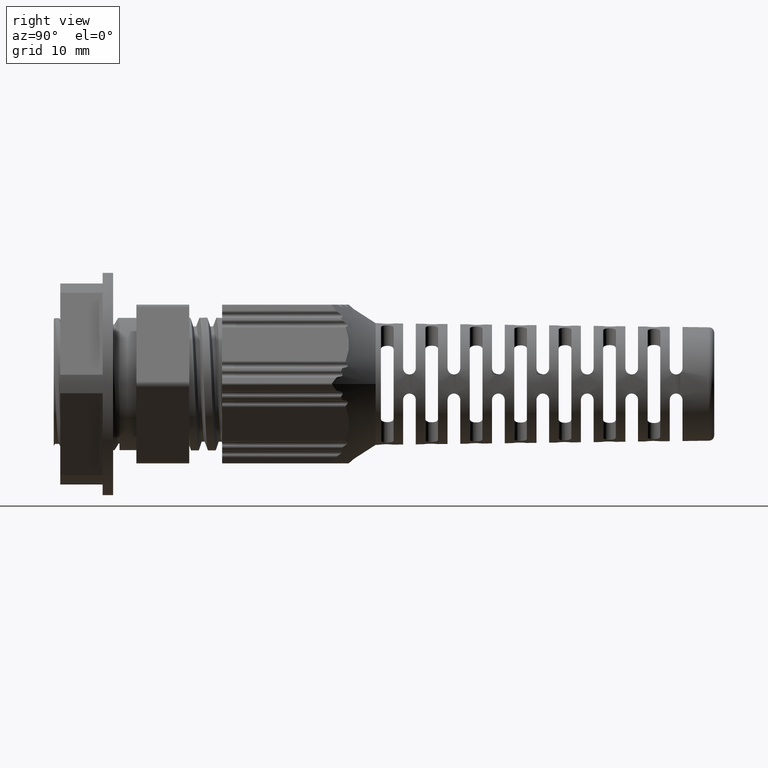
[diagram: clean part render]
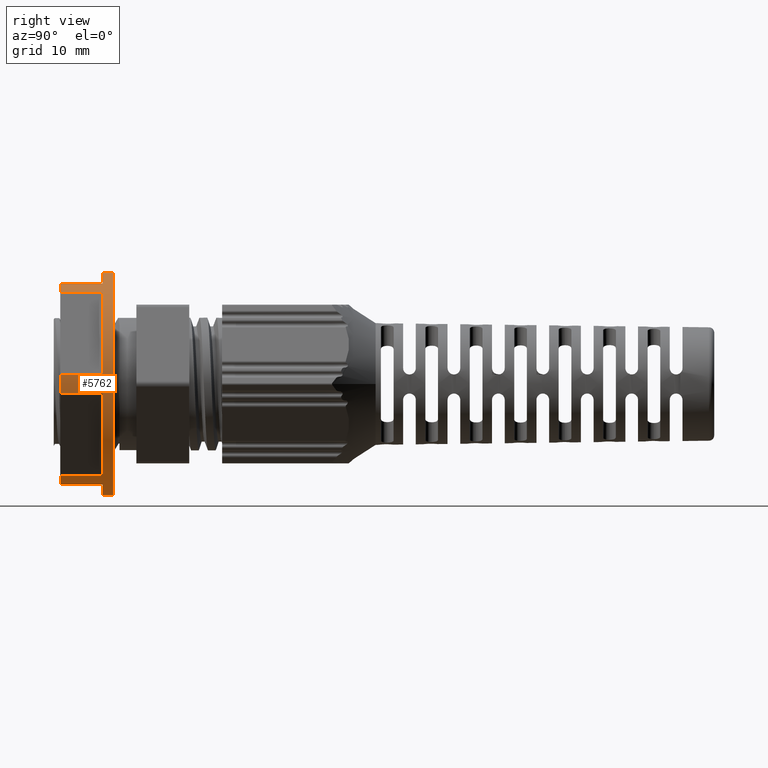
[diagram: same view with one face highlighted and labeled with its STEP entity id]
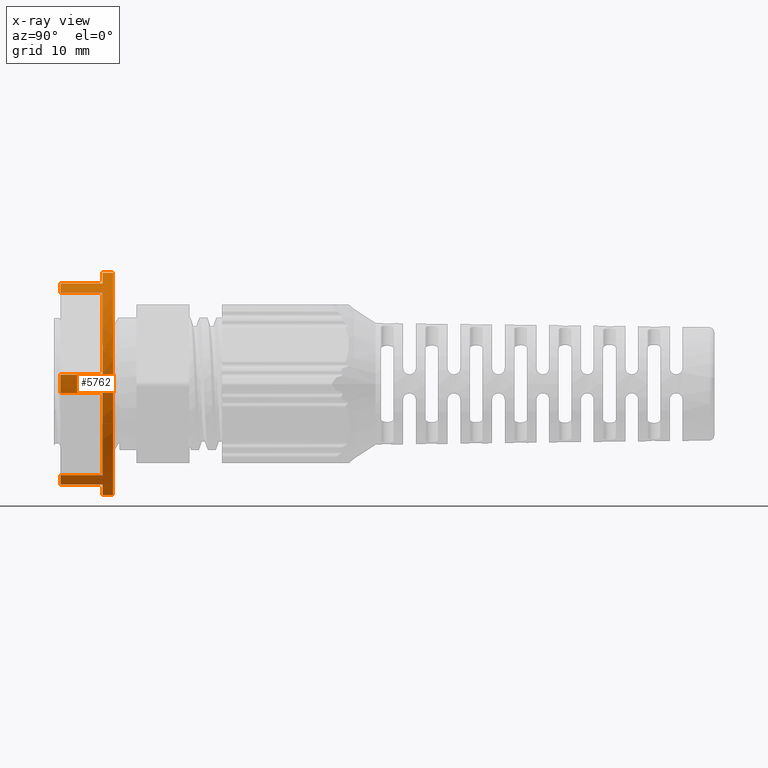
[diagram: x-ray of the same camera — body ghosted, the highlighted face saturated]
A machine part, right view. The second image highlights one B-rep face of the part: STEP entity #5762.
The next image is the same camera in x-ray: the body ghosted, the highlighted face saturated — about 0% of this face is hidden behind the body in this view.
In plain terms, the highlighted cylindrical surface (partial cylindrical patch) has radius 10.5 mm, axis along (0, 1, 0).
Its self-contained STEP definition (entity closure, byte-faithful):
#3405 = CYLINDRICAL_SURFACE ( 'NONE', #20530, 10.50000000000000000 ) ;
#3411 = FACE_OUTER_BOUND ( 'NONE', #20852, .T. ) ;
#3424 = CARTESIAN_POINT ( 'NONE',  ( 3.469446951953614200E-015, -10.06608847983449600, 0.0000000000000000000 ) ) ;
#3425 = DIRECTION ( 'NONE',  ( 0.0000000000000000000, 1.000000000000000000, 0.0000000000000000000 ) ) ;
#3428 = DIRECTION ( 'NONE',  ( 0.0000000000000000000, 0.0000000000000000000, 1.000000000000000000 ) ) ;
#5762 = ADVANCED_FACE ( 'NONE', ( #3411 ), #3405, .T. ) ;
#6902 = EDGE_CURVE ( 'NONE', #18112, #18127, #7647, .T. ) ;
#6903 = EDGE_CURVE ( 'NONE', #18127, #18159, #10527, .T. ) ;
#6904 = EDGE_CURVE ( 'NONE', #18162, #18048, #10534, .T. ) ;
#6905 = EDGE_CURVE ( 'NONE', #18048, #18145, #7638, .T. ) ;
#6907 = EDGE_CURVE ( 'NONE', #18212, #18208, #7644, .T. ) ;
#6916 = EDGE_CURVE ( 'NONE', #18178, #18218, #7659, .T. ) ;
#6917 = EDGE_CURVE ( 'NONE', #18178, #18112, #10606, .T. ) ;
#6920 = EDGE_CURVE ( 'NONE', #18212, #18174, #10629, .T. ) ;
#6925 = EDGE_CURVE ( 'NONE', #18145, #18210, #10631, .T. ) ;
#6939 = EDGE_CURVE ( 'NONE', #18168, #18151, #10742, .T. ) ;
#6941 = EDGE_CURVE ( 'NONE', #18174, #18210, #7307, .T. ) ;
#6943 = EDGE_CURVE ( 'NONE', #18143, #18168, #7316, .T. ) ;
#6947 = EDGE_CURVE ( 'NONE', #18114, #18143, #10783, .T. ) ;
#6948 = EDGE_CURVE ( 'NONE', #18162, #18151, #7329, .T. ) ;
#6950 = EDGE_CURVE ( 'NONE', #18208, #18218, #10803, .T. ) ;
#6951 = EDGE_CURVE ( 'NONE', #18114, #18159, #7323, .T. ) ;
#7290 = VECTOR ( 'NONE', #10647, 1000.000000000000000 ) ;
#7296 = VECTOR ( 'NONE', #10645, 1000.000000000000000 ) ;
#7307 = CIRCLE ( 'NONE', #7317, 10.50000000000000000 ) ;
#7309 = VECTOR ( 'NONE', #10738, 1000.000000000000000 ) ;
#7316 = CIRCLE ( 'NONE', #7320, 10.50000000000000000 ) ;
#7317 = AXIS2_PLACEMENT_3D ( 'NONE', #10744, #10758, #10724 ) ;
#7318 = AXIS2_PLACEMENT_3D ( 'NONE', #10765, #10796, #10800 ) ;
#7319 = VECTOR ( 'NONE', #10809, 1000.000000000000000 ) ;
#7320 = AXIS2_PLACEMENT_3D ( 'NONE', #10717, #10718, #10741 ) ;
#7323 = CIRCLE ( 'NONE', #7325, 10.50000000000000000 ) ;
#7324 = VECTOR ( 'NONE', #10780, 1000.000000000000000 ) ;
#7325 = AXIS2_PLACEMENT_3D ( 'NONE', #10775, #10808, #10788 ) ;
#7329 = CIRCLE ( 'NONE', #7318, 10.50000000000000000 ) ;
#7634 = AXIS2_PLACEMENT_3D ( 'NONE', #10548, #10531, #10525 ) ;
#7636 = VECTOR ( 'NONE', #10533, 1000.000000000000000 ) ;
#7637 = VECTOR ( 'NONE', #10536, 1000.000000000000000 ) ;
#7638 = CIRCLE ( 'NONE', #7642, 10.50000000000000000 ) ;
#7642 = AXIS2_PLACEMENT_3D ( 'NONE', #10569, #10611, #10572 ) ;
#7644 = CIRCLE ( 'NONE', #7651, 10.50000000000000000 ) ;
#7647 = CIRCLE ( 'NONE', #7634, 10.50000000000000000 ) ;
#7651 = AXIS2_PLACEMENT_3D ( 'NONE', #10579, #10584, #10577 ) ;
#7656 = AXIS2_PLACEMENT_3D ( 'NONE', #10617, #10640, #10634 ) ;
#7659 = CIRCLE ( 'NONE', #7656, 10.50000000000000000 ) ;
#7662 = VECTOR ( 'NONE', #10627, 1000.000000000000000 ) ;
#10525 = DIRECTION ( 'NONE',  ( 0.0000000000000000000, 0.0000000000000000000, 1.000000000000000000 ) ) ;
#10527 = LINE ( 'NONE', #10528, #7636 ) ;
#10528 = CARTESIAN_POINT ( 'NONE',  ( 10.46330931345196000, -10.06608847983449600, 0.8770166537925948600 ) ) ;
#10531 = DIRECTION ( 'NONE',  ( 0.0000000000000000000, 1.000000000000000000, 0.0000000000000000000 ) ) ;
#10533 = DIRECTION ( 'NONE',  ( -0.0000000000000000000, -1.000000000000000000, -0.0000000000000000000 ) ) ;
#10534 = LINE ( 'NONE', #10535, #7637 ) ;
#10535 = CARTESIAN_POINT ( 'NONE',  ( 4.472135954999549400, -10.06608847983449600, -9.500000000000016000 ) ) ;
#10536 = DIRECTION ( 'NONE',  ( 0.0000000000000000000, 1.000000000000000000, 0.0000000000000000000 ) ) ;
#10548 = CARTESIAN_POINT ( 'NONE',  ( 3.469446951953614200E-015, -10.06608847983449600, 0.0000000000000000000 ) ) ;
#10569 = CARTESIAN_POINT ( 'NONE',  ( 3.469446951953614200E-015, -10.06608847983449600, 0.0000000000000000000 ) ) ;
#10572 = DIRECTION ( 'NONE',  ( 0.0000000000000000000, 0.0000000000000000000, 1.000000000000000000 ) ) ;
#10577 = DIRECTION ( 'NONE',  ( 0.0000000000000000000, 0.0000000000000000000, 1.000000000000000000 ) ) ;
#10579 = CARTESIAN_POINT ( 'NONE',  ( 3.469446951953614200E-015, -10.06608847983449600, 0.0000000000000000000 ) ) ;
#10584 = DIRECTION ( 'NONE',  ( 0.0000000000000000000, 1.000000000000000000, 0.0000000000000000000 ) ) ;
#10591 = CARTESIAN_POINT ( 'NONE',  ( 5.991173358452394700, -10.06608847983449600, 8.622983346207407300 ) ) ;
#10606 = LINE ( 'NONE', #10591, #7662 ) ;
#10611 = DIRECTION ( 'NONE',  ( 0.0000000000000000000, 1.000000000000000000, 0.0000000000000000000 ) ) ;
#10617 = CARTESIAN_POINT ( 'NONE',  ( 3.469446951953614200E-015, -14.06608847983449600, 0.0000000000000000000 ) ) ;
#10627 = DIRECTION ( 'NONE',  ( 0.0000000000000000000, 1.000000000000000000, 0.0000000000000000000 ) ) ;
#10629 = LINE ( 'NONE', #10652, #7290 ) ;
#10631 = LINE ( 'NONE', #10657, #7296 ) ;
#10634 = DIRECTION ( 'NONE',  ( 0.0000000000000000000, 0.0000000000000000000, 1.000000000000000000 ) ) ;
#10640 = DIRECTION ( 'NONE',  ( -0.0000000000000000000, -1.000000000000000000, -0.0000000000000000000 ) ) ;
#10645 = DIRECTION ( 'NONE',  ( 0.0000000000000000000, 1.000000000000000000, 0.0000000000000000000 ) ) ;
#10647 = DIRECTION ( 'NONE',  ( 0.0000000000000000000, 1.000000000000000000, 0.0000000000000000000 ) ) ;
#10652 = CARTESIAN_POINT ( 'NONE',  ( 3.469446951953614200E-015, -10.06608847983449600, 10.50000000000000000 ) ) ;
#10657 = CARTESIAN_POINT ( 'NONE',  ( 4.755326091058335600E-015, -10.06608847983449600, -10.50000000000000000 ) ) ;
#10717 = CARTESIAN_POINT ( 'NONE',  ( 3.469446951953614200E-015, -10.06608847983449600, 0.0000000000000000000 ) ) ;
#10718 = DIRECTION ( 'NONE',  ( 0.0000000000000000000, 1.000000000000000000, 0.0000000000000000000 ) ) ;
#10724 = DIRECTION ( 'NONE',  ( 0.0000000000000000000, 0.0000000000000000000, 1.000000000000000000 ) ) ;
#10738 = DIRECTION ( 'NONE',  ( -0.0000000000000000000, -1.000000000000000000, -0.0000000000000000000 ) ) ;
#10741 = DIRECTION ( 'NONE',  ( 0.0000000000000000000, 0.0000000000000000000, 1.000000000000000000 ) ) ;
#10742 = LINE ( 'NONE', #10755, #7309 ) ;
#10744 = CARTESIAN_POINT ( 'NONE',  ( 3.469446951953614200E-015, -9.066088479834494500, 0.0000000000000000000 ) ) ;
#10755 = CARTESIAN_POINT ( 'NONE',  ( 5.991173358452376100, -10.06608847983449600, -8.622983346207421500 ) ) ;
#10758 = DIRECTION ( 'NONE',  ( 0.0000000000000000000, 1.000000000000000000, 0.0000000000000000000 ) ) ;
#10765 = CARTESIAN_POINT ( 'NONE',  ( 3.469446951953614200E-015, -14.06608847983449600, 0.0000000000000000000 ) ) ;
#10775 = CARTESIAN_POINT ( 'NONE',  ( 3.469446951953614200E-015, -14.06608847983449600, 0.0000000000000000000 ) ) ;
#10780 = DIRECTION ( 'NONE',  ( -0.0000000000000000000, -1.000000000000000000, -0.0000000000000000000 ) ) ;
#10783 = LINE ( 'NONE', #10802, #7319 ) ;
#10787 = CARTESIAN_POINT ( 'NONE',  ( 4.472135954999550300, -10.06608847983449600, 9.500000000000016000 ) ) ;
#10788 = DIRECTION ( 'NONE',  ( 6.217248937900878200E-015, 0.0000000000000000000, 1.000000000000000000 ) ) ;
#10796 = DIRECTION ( 'NONE',  ( -0.0000000000000000000, -1.000000000000000000, -0.0000000000000000000 ) ) ;
#10800 = DIRECTION ( 'NONE',  ( 0.0000000000000000000, 0.0000000000000000000, 1.000000000000000000 ) ) ;
#10802 = CARTESIAN_POINT ( 'NONE',  ( 10.46330931345196200, -10.06608847983449600, -0.8770166537925773200 ) ) ;
#10803 = LINE ( 'NONE', #10787, #7324 ) ;
#10808 = DIRECTION ( 'NONE',  ( -0.0000000000000000000, -1.000000000000000000, -0.0000000000000000000 ) ) ;
#10809 = DIRECTION ( 'NONE',  ( 0.0000000000000000000, 1.000000000000000000, 0.0000000000000000000 ) ) ;
#16779 = ORIENTED_EDGE ( 'NONE', *, *, #6920, .F. ) ;
#16787 = ORIENTED_EDGE ( 'NONE', *, *, #6907, .T. ) ;
#16803 = ORIENTED_EDGE ( 'NONE', *, *, #6925, .T. ) ;
#16806 = ORIENTED_EDGE ( 'NONE', *, *, #6941, .F. ) ;
#16809 = ORIENTED_EDGE ( 'NONE', *, *, #6905, .T. ) ;
#16825 = ORIENTED_EDGE ( 'NONE', *, *, #6904, .T. ) ;
#16837 = ORIENTED_EDGE ( 'NONE', *, *, #6939, .T. ) ;
#16964 = ORIENTED_EDGE ( 'NONE', *, *, #6916, .F. ) ;
#16972 = ORIENTED_EDGE ( 'NONE', *, *, #6950, .T. ) ;
#16981 = ORIENTED_EDGE ( 'NONE', *, *, #6902, .T. ) ;
#16982 = ORIENTED_EDGE ( 'NONE', *, *, #6903, .T. ) ;
#16983 = ORIENTED_EDGE ( 'NONE', *, *, #6951, .F. ) ;
#16987 = ORIENTED_EDGE ( 'NONE', *, *, #6917, .T. ) ;
#18048 = VERTEX_POINT ( 'NONE', #20126 ) ;
#18112 = VERTEX_POINT ( 'NONE', #20215 ) ;
#18114 = VERTEX_POINT ( 'NONE', #20217 ) ;
#18127 = VERTEX_POINT ( 'NONE', #20238 ) ;
#18143 = VERTEX_POINT ( 'NONE', #20184 ) ;
#18145 = VERTEX_POINT ( 'NONE', #20197 ) ;
#18151 = VERTEX_POINT ( 'NONE', #20175 ) ;
#18159 = VERTEX_POINT ( 'NONE', #20242 ) ;
#18162 = VERTEX_POINT ( 'NONE', #20181 ) ;
#18168 = VERTEX_POINT ( 'NONE', #20185 ) ;
#18174 = VERTEX_POINT ( 'NONE', #20186 ) ;
#18178 = VERTEX_POINT ( 'NONE', #20218 ) ;
#18208 = VERTEX_POINT ( 'NONE', #20327 ) ;
#18210 = VERTEX_POINT ( 'NONE', #20279 ) ;
#18212 = VERTEX_POINT ( 'NONE', #20320 ) ;
#18218 = VERTEX_POINT ( 'NONE', #20294 ) ;
#20126 = CARTESIAN_POINT ( 'NONE',  ( 4.472135954999550300, -10.06608847983449600, -9.500000000000016000 ) ) ;
#20175 = CARTESIAN_POINT ( 'NONE',  ( 5.991173358452377900, -14.06608847983449600, -8.622983346207421500 ) ) ;
#20181 = CARTESIAN_POINT ( 'NONE',  ( 4.472135954999550300, -14.06608847983449600, -9.500000000000016000 ) ) ;
#20184 = CARTESIAN_POINT ( 'NONE',  ( 10.46330931345196200, -10.06608847983449600, -0.8770166537925777600 ) ) ;
#20185 = CARTESIAN_POINT ( 'NONE',  ( 5.991173358452376100, -10.06608847983449600, -8.622983346207421500 ) ) ;
#20186 = CARTESIAN_POINT ( 'NONE',  ( 3.469446951953614200E-015, -9.066088479834494500, 10.50000000000000000 ) ) ;
#20197 = CARTESIAN_POINT ( 'NONE',  ( 4.755326091058335600E-015, -10.06608847983449600, -10.50000000000000000 ) ) ;
#20215 = CARTESIAN_POINT ( 'NONE',  ( 5.991173358452398300, -10.06608847983449600, 8.622983346207405500 ) ) ;
#20217 = CARTESIAN_POINT ( 'NONE',  ( 10.46330931345196200, -14.06608847983449600, -0.8770166537925807600 ) ) ;
#20218 = CARTESIAN_POINT ( 'NONE',  ( 5.991173358452396500, -14.06608847983449600, 8.622983346207407300 ) ) ;
#20238 = CARTESIAN_POINT ( 'NONE',  ( 10.46330931345196000, -10.06608847983449600, 0.8770166537925954100 ) ) ;
#20242 = CARTESIAN_POINT ( 'NONE',  ( 10.46330931345196000, -14.06608847983449600, 0.8770166537925968600 ) ) ;
#20279 = CARTESIAN_POINT ( 'NONE',  ( 4.755326091058335600E-015, -9.066088479834494500, -10.50000000000000000 ) ) ;
#20294 = CARTESIAN_POINT ( 'NONE',  ( 4.472135954999550300, -14.06608847983449600, 9.500000000000016000 ) ) ;
#20320 = CARTESIAN_POINT ( 'NONE',  ( 3.469446951953614200E-015, -10.06608847983449600, 10.50000000000000000 ) ) ;
#20327 = CARTESIAN_POINT ( 'NONE',  ( 4.472135954999550300, -10.06608847983449600, 9.500000000000016000 ) ) ;
#20530 = AXIS2_PLACEMENT_3D ( 'NONE', #3424, #3425, #3428 ) ;
#20717 = ORIENTED_EDGE ( 'NONE', *, *, #6943, .T. ) ;
#20785 = ORIENTED_EDGE ( 'NONE', *, *, #6947, .T. ) ;
#20792 = ORIENTED_EDGE ( 'NONE', *, *, #6948, .F. ) ;
#20852 = EDGE_LOOP ( 'NONE', ( #16809, #16803, #16806, #16779, #16787, #16972, #16964, #16987, #16981, #16982, #16983, #20785, #20717, #16837, #20792, #16825 ) ) ;